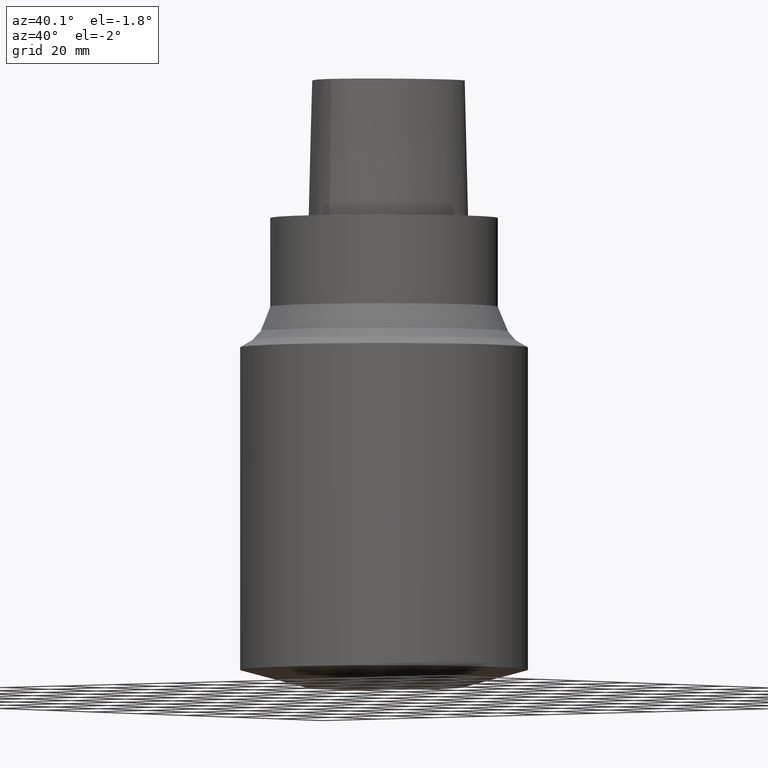
[diagram: clean part render]
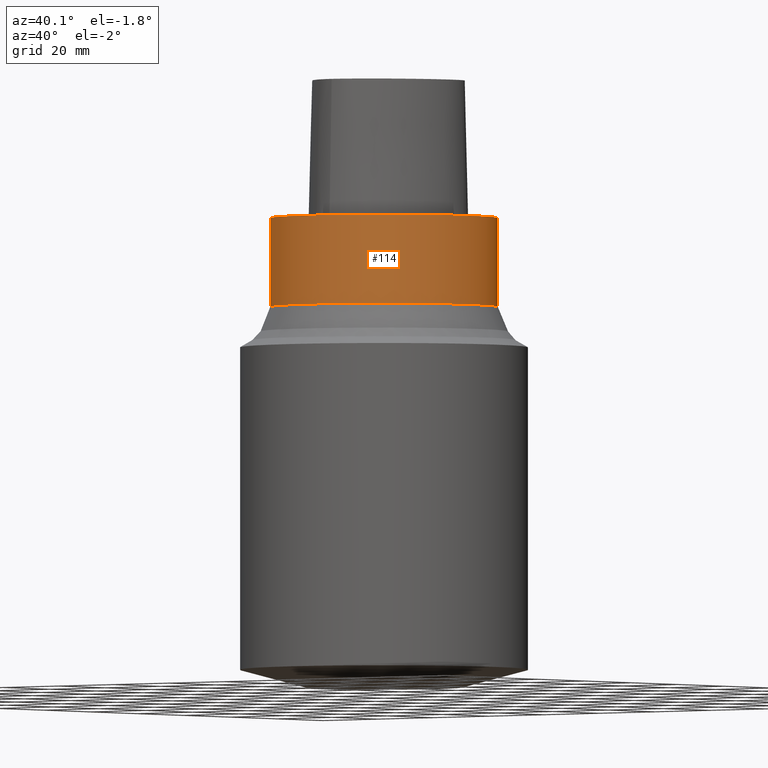
[diagram: same view with one face highlighted and labeled with its STEP entity id]
A machine part, auxiliary view. The second image highlights one B-rep face of the part: STEP entity #114.
In plain terms, the highlighted cylindrical surface (bore or boss wall) has radius 31.5 mm, axis along (0, 0, -1).
Its self-contained STEP definition (entity closure, byte-faithful):
#72=EDGE_CURVE('Unnamed[1]',#167,#167,#168,.T.);
#78=EDGE_CURVE('Unnamed[1]',#176,#176,#177,.T.);
#114=ADVANCED_FACE('Unnamed[1]',(#227,#228),#229,.T.);
#167=VERTEX_POINT('',#385);
#168=CIRCLE('',#386,31.5);
#176=VERTEX_POINT('',#414);
#177=CIRCLE('',#415,31.5);
#227=FACE_BOUND('',#561,.T.);
#228=FACE_BOUND('',#562,.T.);
#229=CYLINDRICAL_SURFACE('',#563,31.5);
#385=CARTESIAN_POINT('',(1.50597243309276E-015,31.5,-24.5943962641518));
#386=AXIS2_PLACEMENT_3D('',#600,#601,#602);
#414=CARTESIAN_POINT('',(-3.88267476788467E-031,31.5,3.85763741731416E-015));
#415=AXIS2_PLACEMENT_3D('',#606,#607,#608);
#561=EDGE_LOOP('',(#663));
#562=EDGE_LOOP('',(#664));
#563=AXIS2_PLACEMENT_3D('',#665,#666,#667);
#600=CARTESIAN_POINT('',(1.50597243309276E-015,3.01194486618551E-015,-24.5943962641518));
#601=DIRECTION('',(6.12323399573677E-017,1.22464679914735E-016,-1.0));
#602=DIRECTION('',(-1.23259516440783E-032,1.0,1.22464679914735E-016));
#606=CARTESIAN_POINT('',(0.0,0.0,0.0));
#607=DIRECTION('',(6.12323399573677E-017,1.22464679914735E-016,-1.0));
#608=DIRECTION('',(-1.23259516440783E-032,1.0,1.22464679914735E-016));
#663=ORIENTED_EDGE('',*,*,#72,.F.);
#664=ORIENTED_EDGE('',*,*,#78,.T.);
#665=CARTESIAN_POINT('',(7.52986216546378E-016,1.50597243309276E-015,-12.2971981320759));
#666=DIRECTION('',(6.12323399573677E-017,1.22464679914735E-016,-1.0));
#667=DIRECTION('',(-1.23259516440783E-032,1.0,1.22464679914735E-016));